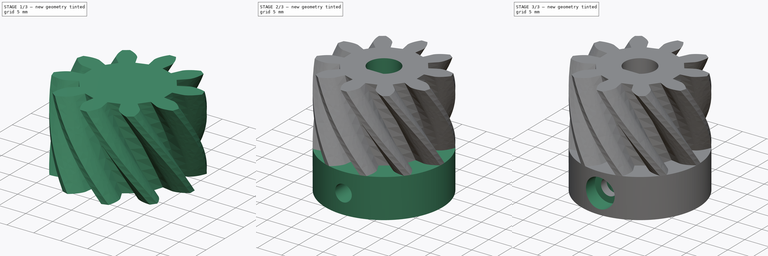
[diagram: build sequence overview — one tinted view per stage of 3, left to right]
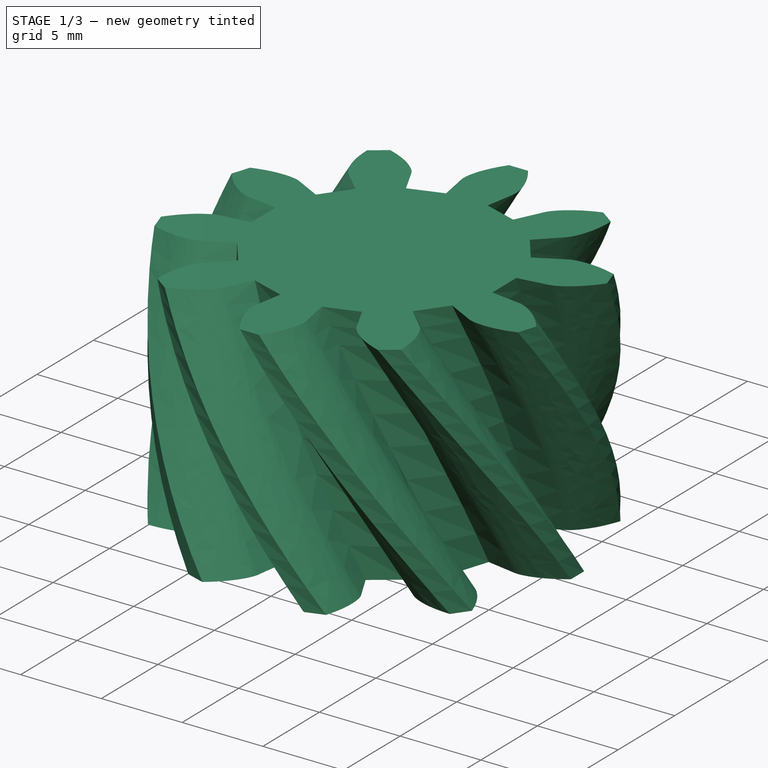
[diagram: stage 1 of 3 — iso view after this stage's code; geometry added in this stage tinted green]
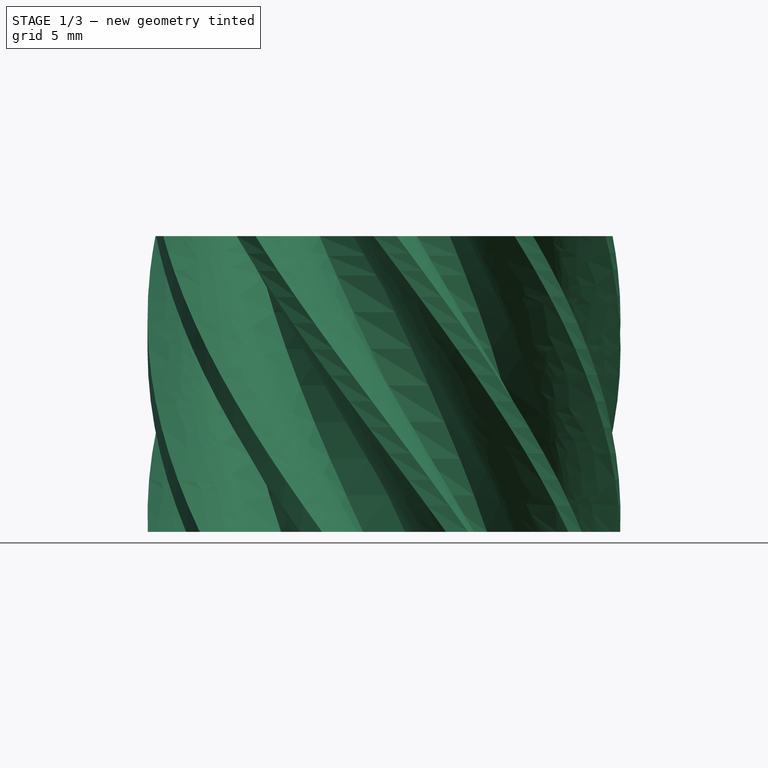
[diagram: stage 1 of 3 — front view after this stage's code; geometry added in this stage tinted green]
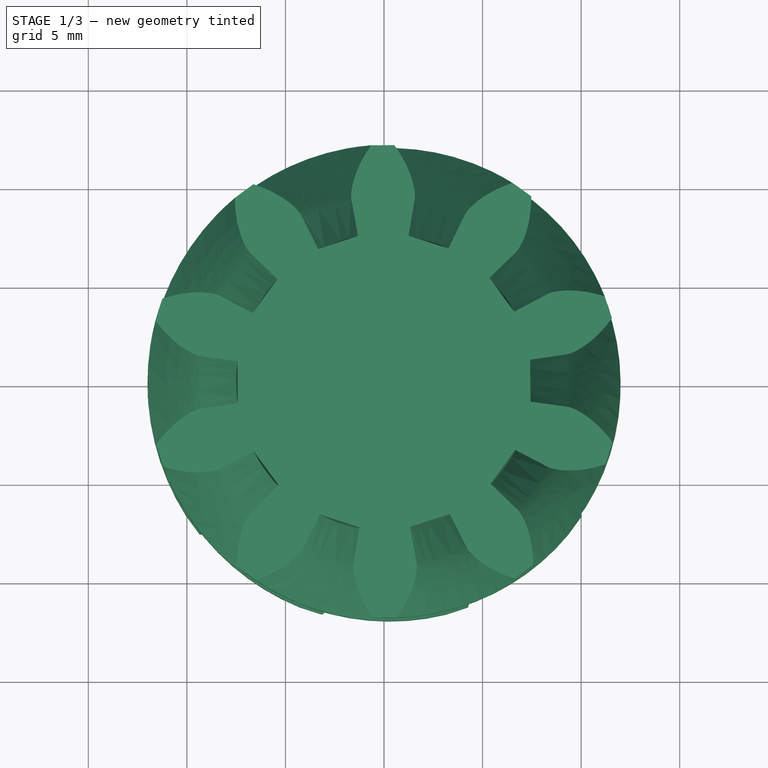
[diagram: stage 1 of 3 — top view after this stage's code; geometry added in this stage tinted green]
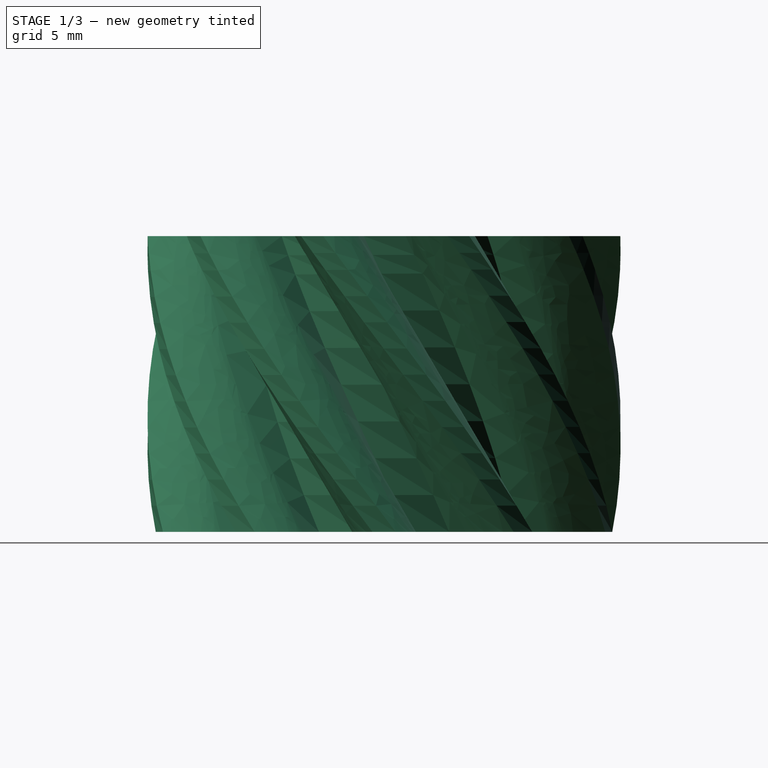
[diagram: stage 1 of 3 — right view after this stage's code; geometry added in this stage tinted green]
FCSTD DOCUMENT  (FreeCAD 0.19R24276 (Git))
Label: Art2MotorGear
License: All rights reserved
LicenseURL: http://en.wikipedia.org/wiki/All_rights_reserved
objects: Sketcher::SketchObject×5, PartDesign::Pocket×4, PartDesign::Plane×3, PartDesign::Line×2, Spreadsheet::Sheet×1, Part::FeaturePython×1, PartDesign::FeatureBase×1, PartDesign::Pad×1, PartDesign::CoordinateSystem×1, PartDesign::Body×1
note: 24 computed .brp shape members not serialized (recipe doc carries the construction recipe); baked Part::Feature solids carry a one-line shape summary decoded from their .brp

FEATURE [Spreadsheet::Sheet] Spreadsheet
  cells = A2=M3BoltBodyRadius; B2(M3BoltBodyRadius)=1.7; A3=M3BoltHeadRadius; B3(M3BoltHeadRadius)=2.95; A4=M3NutCircumradius; B4(M3NutCircumradius)=3.35; A5=M3NutThickness; B5(M3NutThickness)=3; A6=Bearing655ZZBodyRadius; B6(Bearing655ZZBodyRadius)=8.199999999999999
FEATURE [Part::FeaturePython] involutegear  # WARN: FeaturePython — macro-defined, semantics opaque (R4)
  backlash = 0
  beta = -32
  clearance = 0.25
  double_helix = false
  dw = 20
  head = 0
  height = 15
  module = 2
  numpoints = 6
  pressure_angle = 20
  properties_from_tool = false
  reversed_backlash = false
  shift = 0
  simple = false
  teeth = 10
  transverse_pitch = 6.28319
  undercut = false
  version = 0.0.3
FEATURE [PartDesign::FeatureBase] BaseFeature
  BaseFeature = -> involutegear
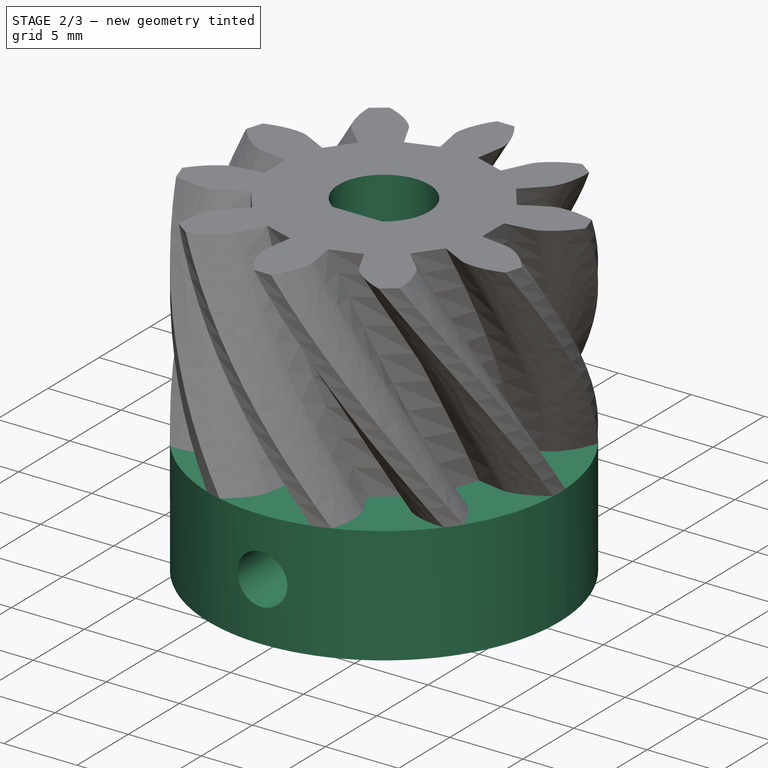
[diagram: stage 2 of 3 — iso view after this stage's code; geometry added in this stage tinted green]
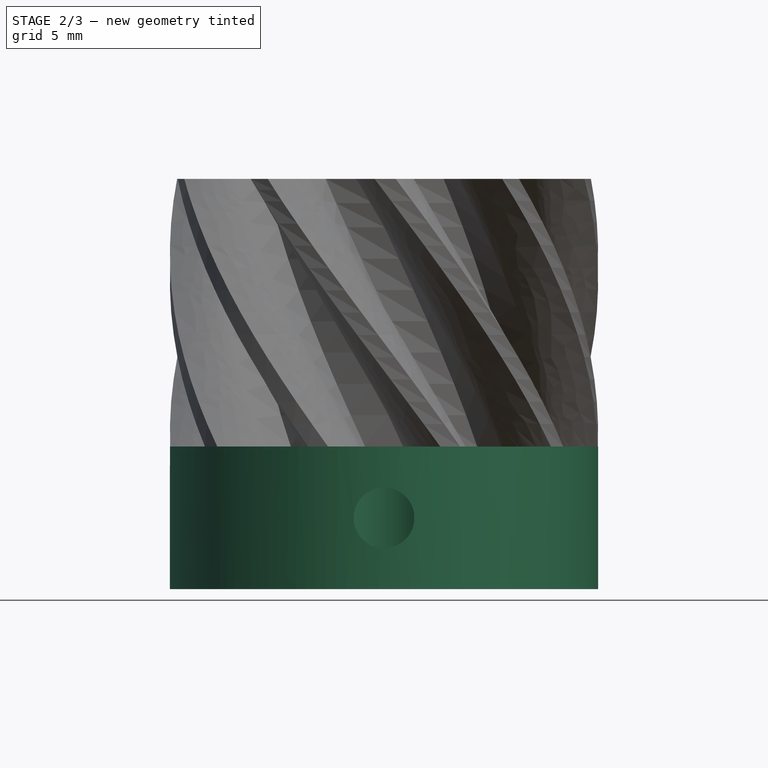
[diagram: stage 2 of 3 — front view after this stage's code; geometry added in this stage tinted green]
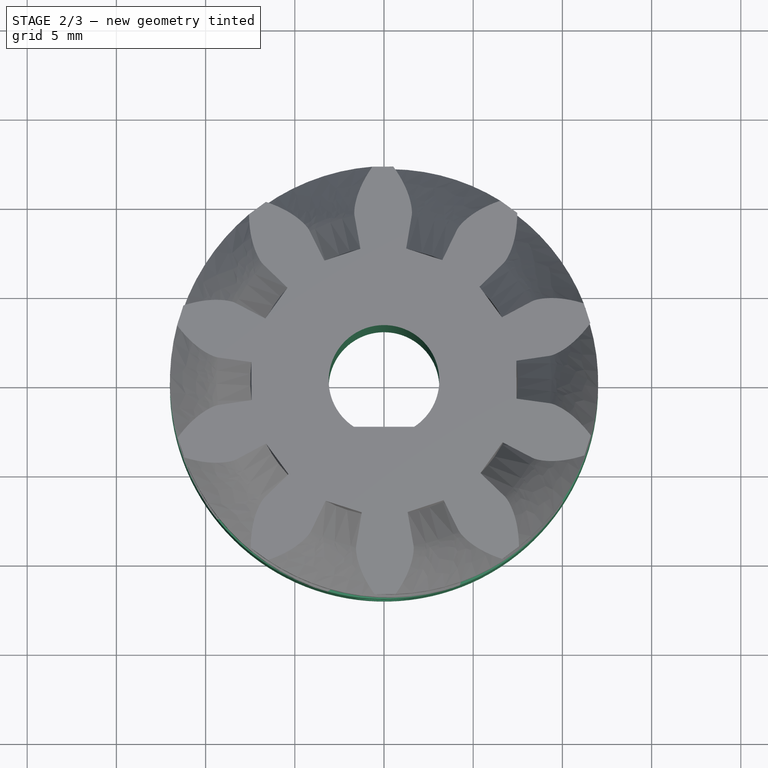
[diagram: stage 2 of 3 — top view after this stage's code; geometry added in this stage tinted green]
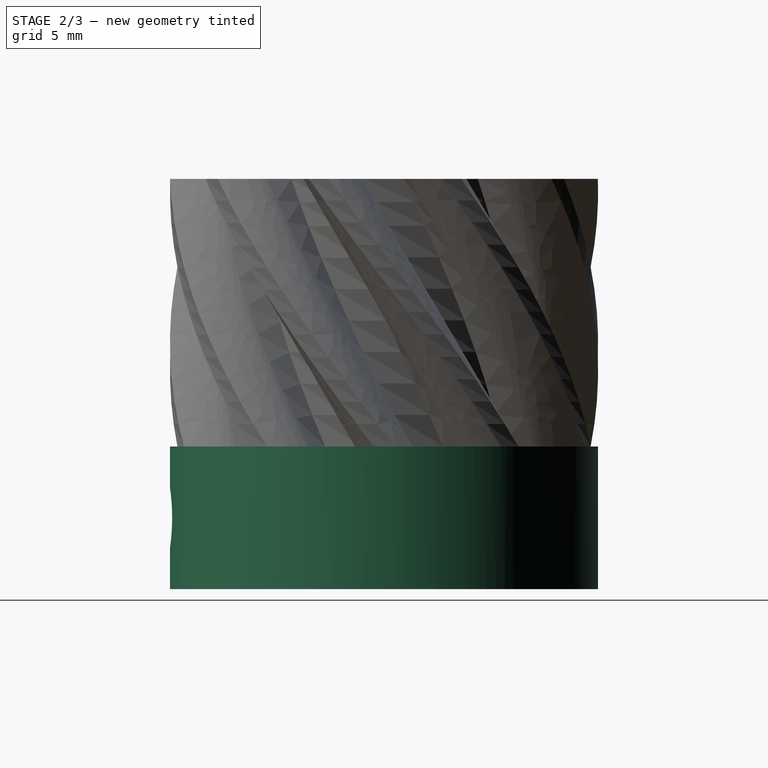
[diagram: stage 2 of 3 — right view after this stage's code; geometry added in this stage tinted green]
FEATURE [Sketcher::SketchObject] Sketch
  FullyConstrained = true
  MapMode = 5
  Placement = pos=(0,0,0) rot=(1,0,0;3.14159rad)
  Support = -> [BaseFeature]
  sketch-geometry (1):
    g0: Circle CenterX=0 CenterY=0 CenterZ=0 NormalX=0 NormalY=0 NormalZ=1 AngleXU=0 Radius=12
  constraints (2):
    c: Coincident(g0,g-1)
    c: Radius(g0) = 12
FEATURE [PartDesign::Pad] Pad
  BaseFeature = -> BaseFeature
  Direction = (1,1,1)
  Length = 8
  Length2 = 100
  Profile = -> Sketch
  Refine = true
  Type = 0
FEATURE [Sketcher::SketchObject] Sketch001
  FullyConstrained = true
  MapMode = 5
  Placement = pos=(0,-4e-16,-8) rot=(1,0,0;3.14159rad)
  Support = -> [Pad]
  sketch-geometry (2):
    g0: ArcOfCircle CenterX=0 CenterY=0 CenterZ=0 NormalX=0 NormalY=0 NormalZ=1 AngleXU=0 Radius=3.1 StartAngle=2.14668 EndAngle=7.27809
    g1: LineSegment StartX=-1.68819 StartY=2.6 StartZ=0 EndX=1.68819 EndY=2.6 EndZ=0
  constraints (6):
    c: Coincident(g0,g-1)
    c: Coincident(g1,g0)
    c: Coincident(g1,g0)
    c: Radius(g0) = 3.1
    c: Horizontal(g1)
    c: DistanceY(g0,g0) = 2.6
FEATURE [PartDesign::Pocket] Pocket
  BaseFeature = -> Pad
  Length = 5
  Length2 = 100
  Profile = -> Sketch001
  Refine = true
  Type = 1
FEATURE [Sketcher::SketchObject] Sketch002
  FullyConstrained = true
  MapMode = 5
  Placement = pos=(0,-2.6,1e-16) rot=(0,0.707107,0.707107;3.14159rad)
  Support = -> [Pocket]
  expr: Constraints[2] = Spreadsheet.M3BoltBodyRadius
  sketch-geometry (1):
    g0: Circle CenterX=0 CenterY=-4 CenterZ=0 NormalX=0 NormalY=0 NormalZ=1 AngleXU=0 Radius=1.7
  constraints (3):
    c: PointOnObject(g0,g-2)
    c: DistanceY(g0,g-1) = 4
    c: Radius(g0) = 1.7
FEATURE [PartDesign::Pocket] Pocket001
  BaseFeature = -> Pocket
  Length = 5
  Length2 = 100
  Profile = -> Sketch002
  Refine = true
  Type = 1
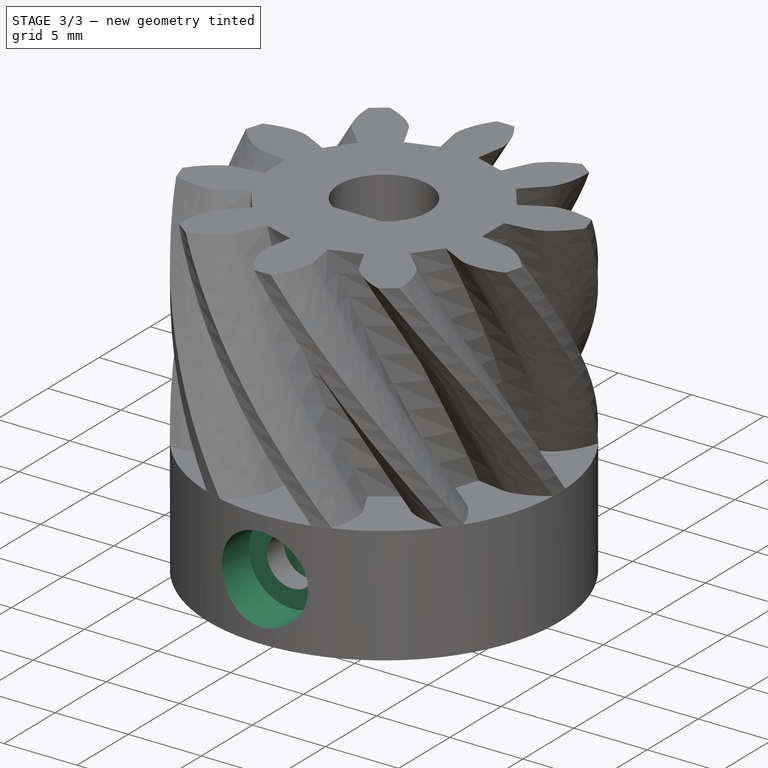
[diagram: stage 3 of 3 — iso view after this stage's code; geometry added in this stage tinted green]
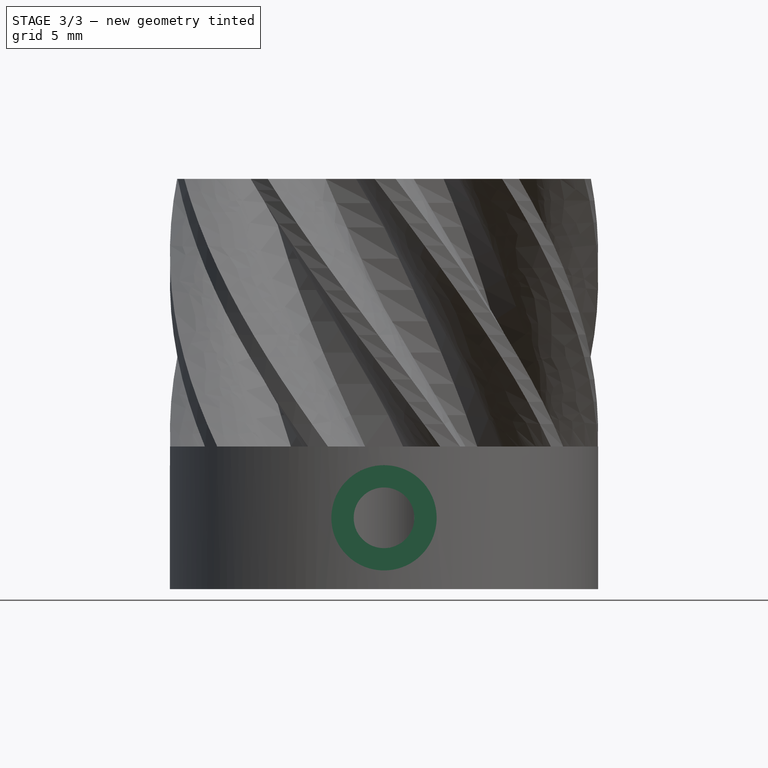
[diagram: stage 3 of 3 — front view after this stage's code; geometry added in this stage tinted green]
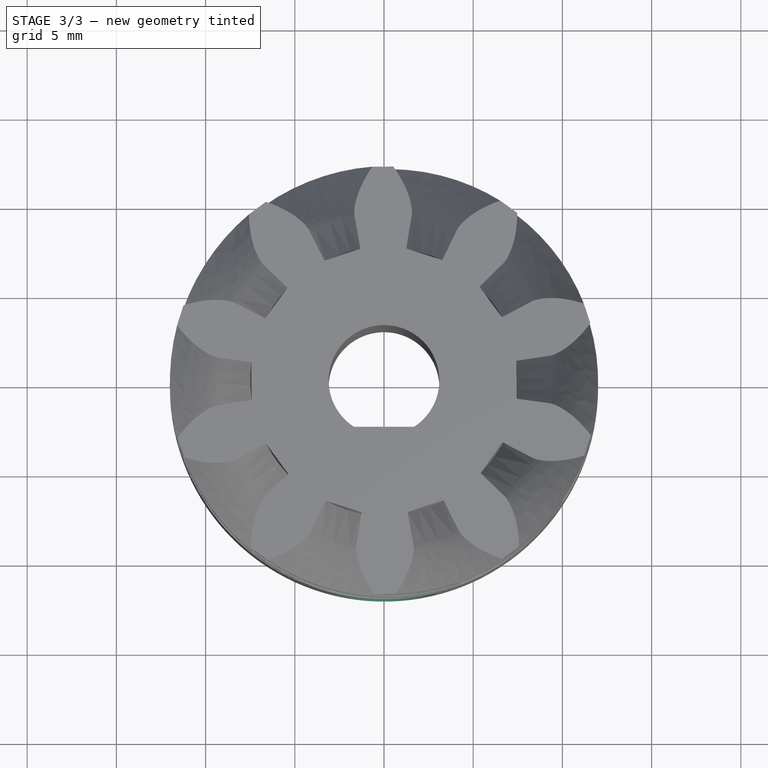
[diagram: stage 3 of 3 — top view after this stage's code; geometry added in this stage tinted green]
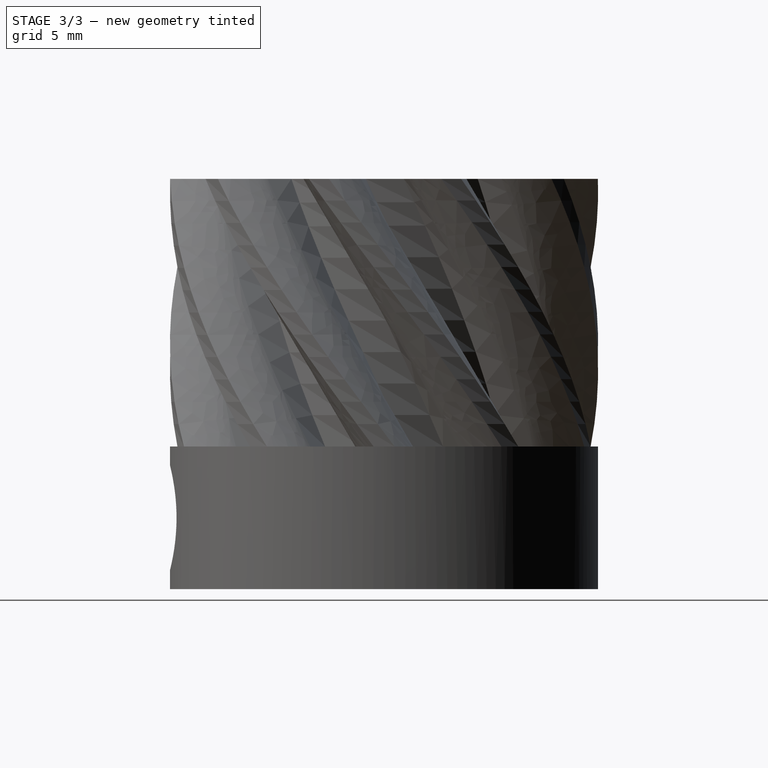
[diagram: stage 3 of 3 — right view after this stage's code; geometry added in this stage tinted green]
FEATURE [PartDesign::Plane] DatumPlane
  AttachmentOffset = pos=(0,0,5.85) rot=(0,0,1;0rad)
  Length = 60
  MapMode = 5
  Placement = pos=(0,-5.85,-1.3e-15) rot=(1,0,0;1.5708rad)
  ResizeMode = 0
  Support = -> [XZ_Plane]
  Width = 60
FEATURE [Sketcher::SketchObject] Sketch003
  ExternalGeometry = -> [Pocket001]
  FullyConstrained = true
  MapMode = 5
  Placement = pos=(0,-5.85,-1.3e-15) rot=(1,0,0;1.5708rad)
  Support = -> [DatumPlane]
  expr: Constraints[19] = Spreadsheet.M3NutCircumradius
  sketch-geometry (10):
    g0: LineSegment StartX=0 StartY=-0.65 StartZ=0 EndX=-2.90119 EndY=-2.325 EndZ=0
    g1: LineSegment StartX=-2.90119 StartY=-2.325 StartZ=0 EndX=-2.90119 EndY=-5.675 EndZ=0
    g2: LineSegment StartX=-2.90119 StartY=-5.675 StartZ=0 EndX=0 EndY=-7.35 EndZ=0
    g3: LineSegment StartX=0 StartY=-7.35 StartZ=0 EndX=2.90119 EndY=-5.675 EndZ=0
    g4: LineSegment StartX=2.90119 StartY=-5.675 StartZ=0 EndX=2.90119 EndY=-2.325 EndZ=0
    g5: LineSegment StartX=2.90119 StartY=-2.325 StartZ=0 EndX=0 EndY=-0.65 EndZ=0
    g6: Circle CenterX=0 CenterY=-4 CenterZ=0 NormalX=0 NormalY=0 NormalZ=1 AngleXU=0 Radius=3.35
    g7: LineSegment StartX=-2.90119 StartY=-2.325 StartZ=0 EndX=-2.90119 EndY=-12.325 EndZ=0
    g8: LineSegment StartX=-2.90119 StartY=-12.325 StartZ=0 EndX=2.90119 EndY=-12.325 EndZ=0
    g9: LineSegment StartX=2.90119 StartY=-12.325 StartZ=0 EndX=2.90119 EndY=-2.325 EndZ=0
  constraints (24):
    c: Coincident(g0,g1)
    c: Coincident(g1,g2)
    c: Coincident(g2,g3)
    c: Coincident(g3,g4)
    c: Coincident(g4,g5)
    c: Coincident(g5,g0)
    c: Equal(g0, g1-g5) x5
    c: PointOnObject(g0,g6)
    c: PointOnObject(g1,g6)
    c: PointOnObject(g2,g6)
    c: PointOnObject(g3,g6)
    c: PointOnObject(g4,g6)
    c: PointOnObject(g5,g6)
    c: Coincident(g6,g-3)
    c: PointOnObject(g5,g-2)
    c: Radius(g6) = 3.35
    c: Coincident(g0,g7)
    c: Vertical(g7)
    c: Coincident(g7,g8)
    c: Horizontal(g8)
    c: Coincident(g8,g9)
    c: Coincident(g9,g5)
    c: Vertical(g9)
    c: DistanceY(g9,g9) = 10
FEATURE [PartDesign::Pocket] Pocket002
  BaseFeature = -> Pocket001
  Length = 3
  Length2 = 100
  Midplane = true
  Profile = -> Sketch003
  Refine = true
  Reversed = true
  Type = 0
  expr: Length = Spreadsheet.M3NutThickness
FEATURE [PartDesign::Plane] DatumPlane001
  Length = 60
  ResizeMode = 0
  Width = 60
FEATURE [PartDesign::Plane] DatumPlane002
  AttachmentOffset = pos=(0,0,13) rot=(0,0,1;0rad)
  Length = 60
  MapMode = 5
  Placement = pos=(0,-13,-2.9e-15) rot=(1,0,0;1.5708rad)
  ResizeMode = 0
  Support = -> [XZ_Plane]
  Width = 60
FEATURE [Sketcher::SketchObject] Sketch004
  ExternalGeometry = -> [Pocket002]
  FullyConstrained = true
  MapMode = 5
  Placement = pos=(0,-13,-2.9e-15) rot=(1,0,0;1.5708rad)
  Support = -> [DatumPlane002]
  expr: Constraints[1] = Spreadsheet.M3BoltHeadRadius
  sketch-geometry (1):
    g0: Circle CenterX=0 CenterY=-4 CenterZ=0 NormalX=0 NormalY=0 NormalZ=1 AngleXU=0 Radius=2.95
  constraints (2):
    c: Coincident(g0,g-3)
    c: Radius(g0) = 2.95
FEATURE [PartDesign::Pocket] Pocket003
  BaseFeature = -> Pocket002
  Length = 4
  Length2 = 100
  Profile = -> Sketch004
  Refine = true
  Type = 0
FEATURE [PartDesign::CoordinateSystem] LCS_Art2MotorGear
  AttacherType = Attacher::AttachEngine3D
  MapMode = 11
  Placement = pos=(-4e-16,0,-8) rot=(0.283981,0.95883,0;3.14159rad)
  Support = -> [Pocket003]
FEATURE [PartDesign::Line] HoleAxis_1
  AttacherType = Attacher::AttachEngineLine
  Length = 4.79083
  MapMode = 19
  Placement = pos=(0,-9,-4) rot=(0,0.707107,0.707107;3.14159rad)
  ResizeMode = 1
  Support = -> [Pocket003]
FEATURE [PartDesign::Line] HoleAxis_2
  AttacherType = Attacher::AttachEngineLine
  Length = 4.79083
  MapMode = 19
  Placement = pos=(0,-4.35,-4) rot=(0,0.707107,0.707107;3.14159rad)
  ResizeMode = 1
  Support = -> [Pocket003]
FEATURE [PartDesign::Body] Body  label="Art2MotorGear"
  BaseFeature = -> involutegear
  Group = -> [BaseFeature,Sketch,Pad,Sketch001,Pocket,Sketch002,Pocket001,DatumPlane,Sketch003,Pocket002,DatumPlane001,DatumPlane002,Sketch004,Pocket003,LCS_Art2MotorGear,HoleAxis_1,HoleAxis_2]
  Origin = -> Origin
  Tip = -> Pocket003
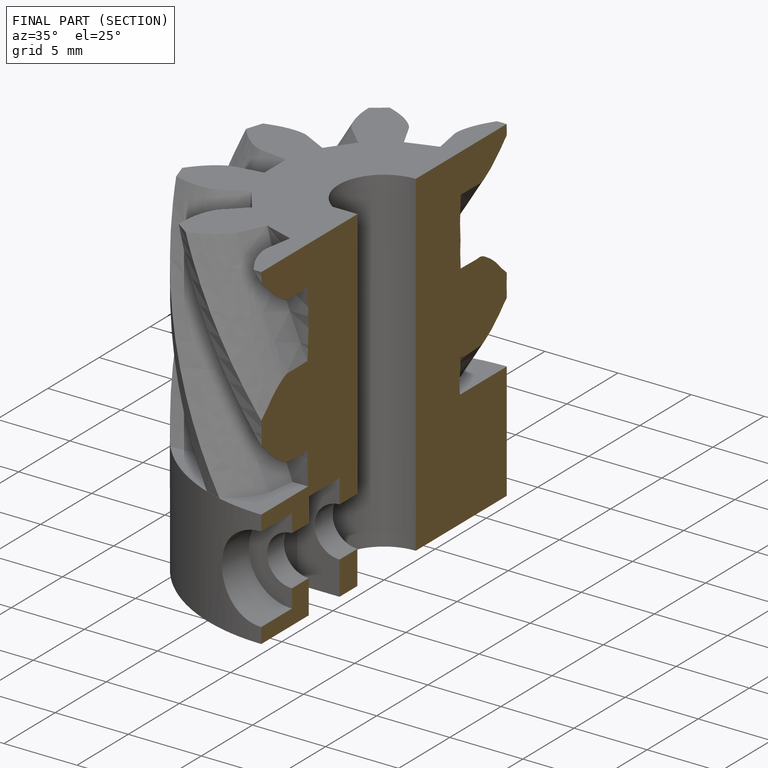
[diagram: finished part — half-section view (interior)]
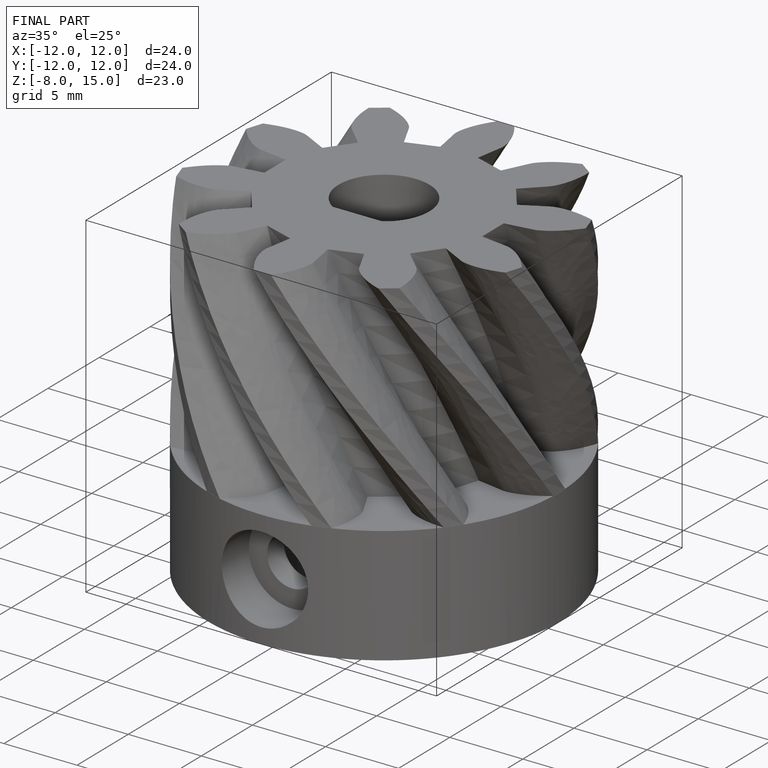
[diagram: finished part — iso view with bounding-box wireframe]
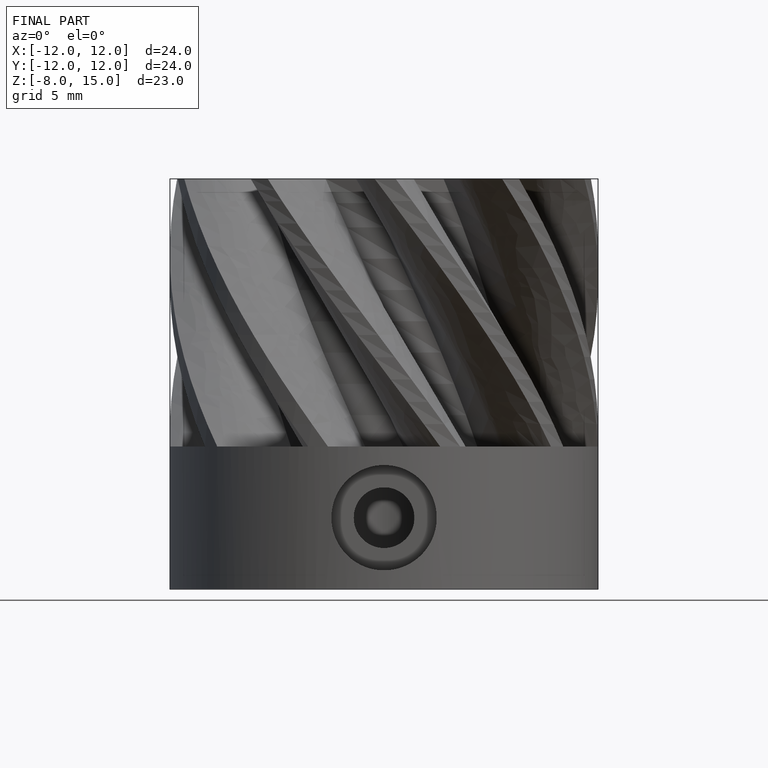
[diagram: finished part — front view with bounding-box wireframe]
